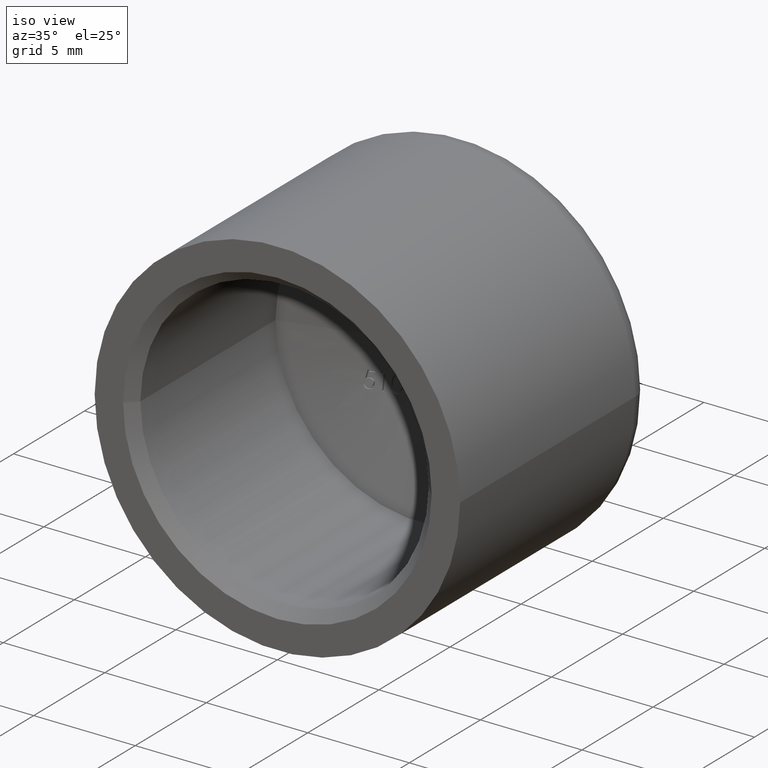
[diagram: clean part render]
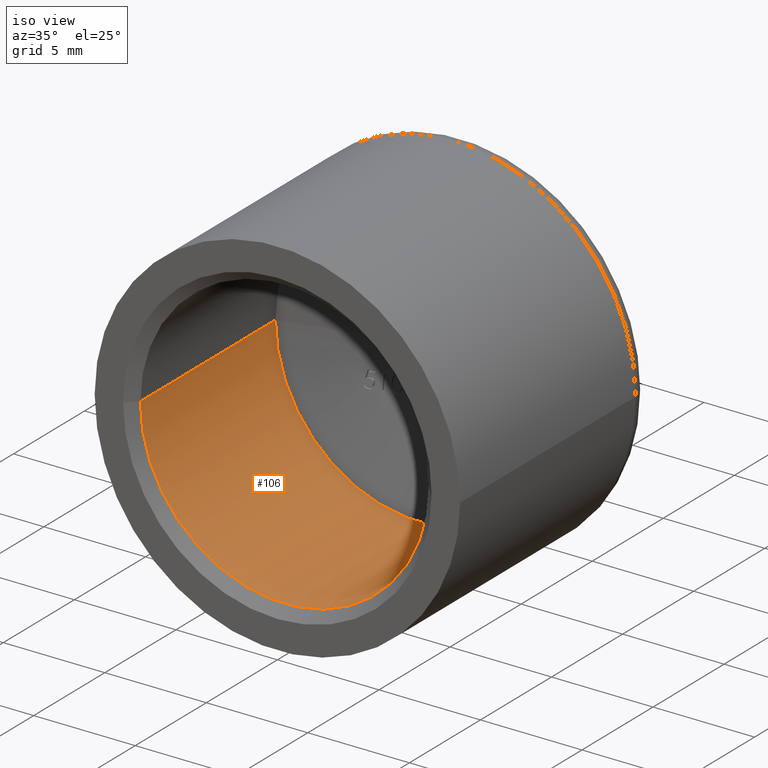
[diagram: same view with one face highlighted and labeled with its STEP entity id]
A machine part, iso view. The second image highlights one B-rep face of the part: STEP entity #106.
In plain terms, the highlighted cylindrical surface (partial cylindrical patch) has radius 7.1 mm, axis along (-0, -1, -0).
Its self-contained STEP definition (entity closure, byte-faithful):
#106 = ADVANCED_FACE ( 'NONE', ( #10244 ), #7662, .F. ) ;
#241 = CARTESIAN_POINT ( 'NONE',  ( 7.099999999999998757, 11.90243926626093973, 0.000000000000000000 ) ) ;
#473 = VECTOR ( 'NONE', #8861, 1000.000000000000000 ) ;
#738 = DIRECTION ( 'NONE',  ( 1.000000000000000000, 0.000000000000000000, 0.000000000000000000 ) ) ;
#873 = DIRECTION ( 'NONE',  ( 1.000000000000000000, 0.000000000000000000, 0.000000000000000000 ) ) ;
#1002 = LINE ( 'NONE', #13671, #10059 ) ;
#2068 = CARTESIAN_POINT ( 'NONE',  ( 7.100000000000001421, 10.00000000000000000, 0.000000000000000000 ) ) ;
#2166 = LINE ( 'NONE', #241, #473 ) ;
#2290 = CARTESIAN_POINT ( 'NONE',  ( -7.100000000000001421, 10.00000000000000000, 8.694992273946207746E-16 ) ) ;
#2670 = DIRECTION ( 'NONE',  ( -1.556407531961289385E-17, -1.000000000000000000, -0.000000000000000000 ) ) ;
#2844 = DIRECTION ( 'NONE',  ( -1.556407531961289385E-17, -1.000000000000000000, -0.000000000000000000 ) ) ;
#2929 = AXIS2_PLACEMENT_3D ( 'NONE', #9655, #8682, #12898 ) ;
#2948 = AXIS2_PLACEMENT_3D ( 'NONE', #8332, #12841, #738 ) ;
#3165 = VERTEX_POINT ( 'NONE', #4750 ) ;
#3701 = EDGE_CURVE ( 'NONE', #5809, #3165, #1002, .T. ) ;
#3873 = VERTEX_POINT ( 'NONE', #2068 ) ;
#3914 = EDGE_CURVE ( 'NONE', #3165, #10501, #13926, .T. ) ;
#4727 = ORIENTED_EDGE ( 'NONE', *, *, #8331, .F. ) ;
#4750 = CARTESIAN_POINT ( 'NONE',  ( -7.099999999999998757, 0.4999999999999936162, 8.694992273946205774E-16 ) ) ;
#5041 = EDGE_LOOP ( 'NONE', ( #4727, #8866, #13311, #6235 ) ) ;
#5051 = CARTESIAN_POINT ( 'NONE',  ( -4.821066856699010765E-17, 11.90243926626093973, 0.000000000000000000 ) ) ;
#5250 = CARTESIAN_POINT ( 'NONE',  ( 7.099999999999998757, 0.4999999999999933942, 0.000000000000000000 ) ) ;
#5809 = VERTEX_POINT ( 'NONE', #2290 ) ;
#6235 = ORIENTED_EDGE ( 'NONE', *, *, #12657, .F. ) ;
#7407 = CIRCLE ( 'NONE', #2948, 7.099999999999998757 ) ;
#7662 = CYLINDRICAL_SURFACE ( 'NONE', #8677, 7.099999999999998757 ) ;
#8331 = EDGE_CURVE ( 'NONE', #5809, #3873, #7407, .T. ) ;
#8332 = CARTESIAN_POINT ( 'NONE',  ( -7.782037659806444459E-17, 10.00000000000000000, 0.000000000000000000 ) ) ;
#8677 = AXIS2_PLACEMENT_3D ( 'NONE', #5051, #2844, #873 ) ;
#8682 = DIRECTION ( 'NONE',  ( -1.556407531961290926E-17, -1.000000000000000000, 0.000000000000000000 ) ) ;
#8861 = DIRECTION ( 'NONE',  ( -1.556407531961289385E-17, -1.000000000000000000, -0.000000000000000000 ) ) ;
#8866 = ORIENTED_EDGE ( 'NONE', *, *, #3701, .T. ) ;
#9655 = CARTESIAN_POINT ( 'NONE',  ( -2.256790921343870471E-16, 0.4999999999999935052, 0.000000000000000000 ) ) ;
#10059 = VECTOR ( 'NONE', #2670, 1000.000000000000000 ) ;
#10244 = FACE_OUTER_BOUND ( 'NONE', #5041, .T. ) ;
#10501 = VERTEX_POINT ( 'NONE', #5250 ) ;
#12657 = EDGE_CURVE ( 'NONE', #3873, #10501, #2166, .T. ) ;
#12841 = DIRECTION ( 'NONE',  ( -1.556407531961289385E-17, -1.000000000000000000, -0.000000000000000000 ) ) ;
#12898 = DIRECTION ( 'NONE',  ( 1.000000000000000000, -1.527045313359865600E-17, 0.000000000000000000 ) ) ;
#13311 = ORIENTED_EDGE ( 'NONE', *, *, #3914, .T. ) ;
#13671 = CARTESIAN_POINT ( 'NONE',  ( -7.099999999999998757, 11.90243926626093973, 8.694992273946205774E-16 ) ) ;
#13926 = CIRCLE ( 'NONE', #2929, 7.099999999999998757 ) ;